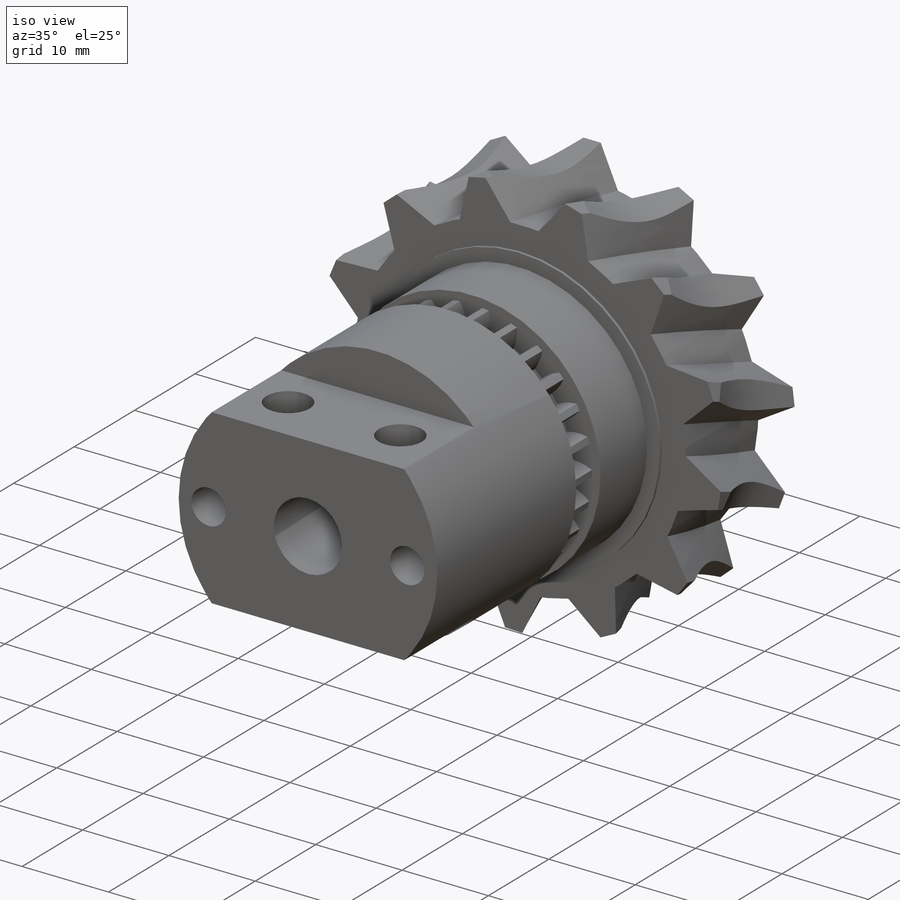
[diagram: iso view]
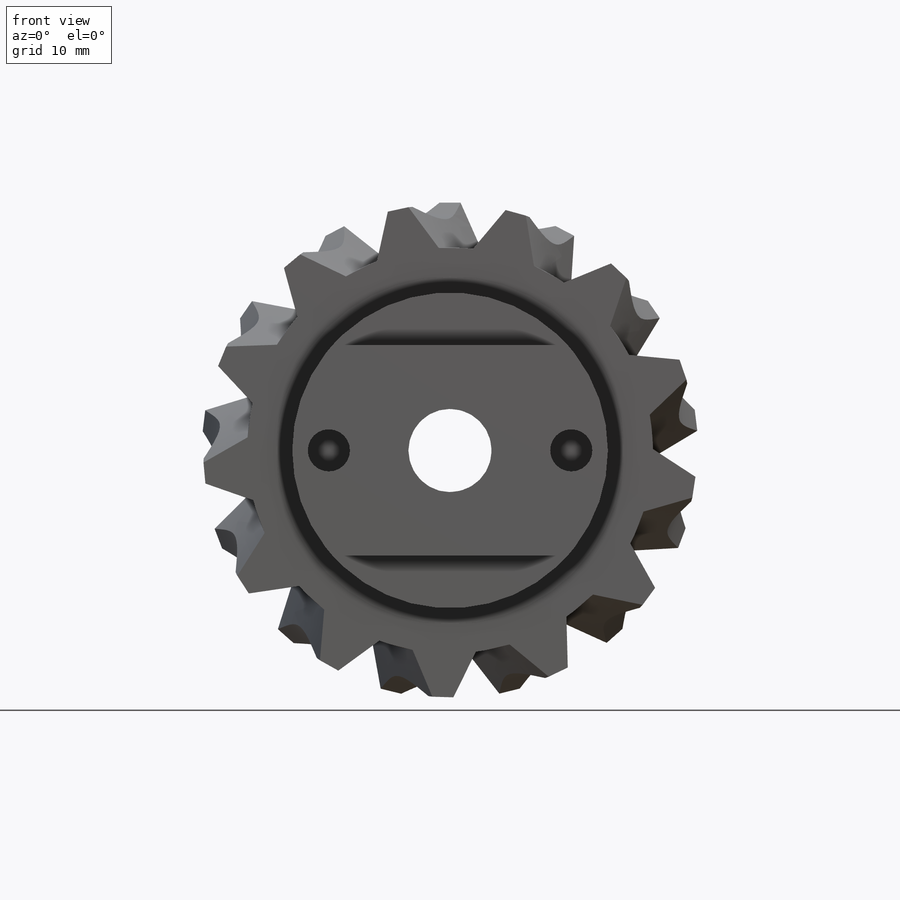
[diagram: front view]
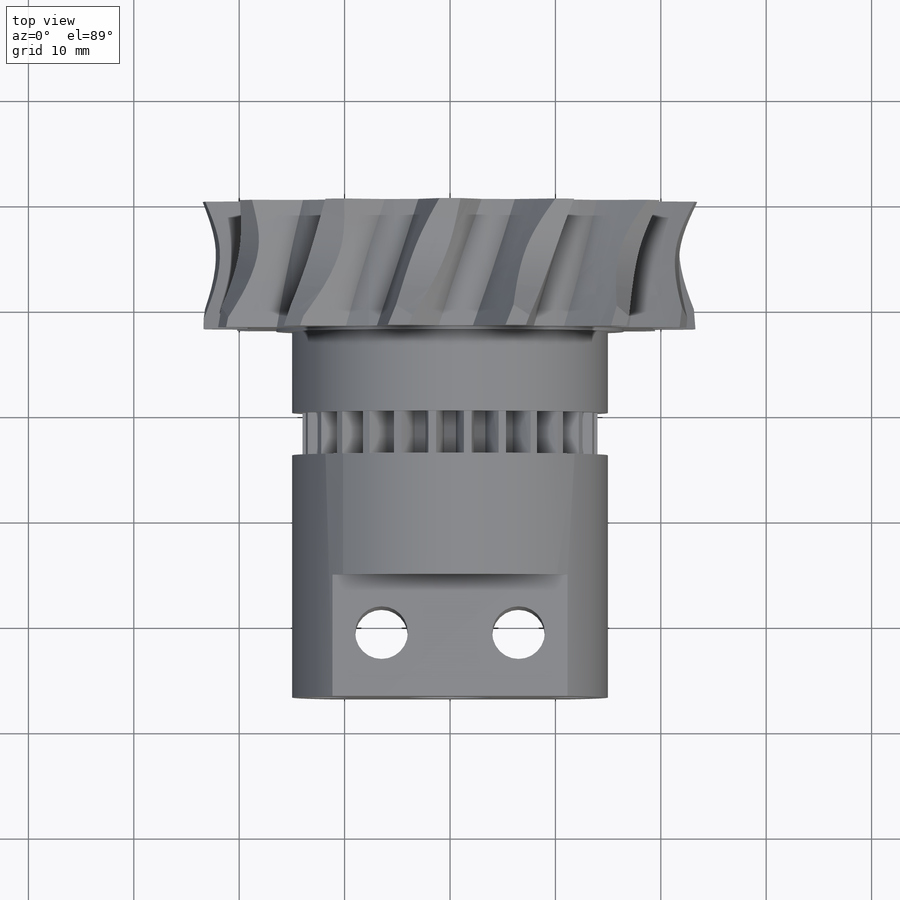
[diagram: top view]
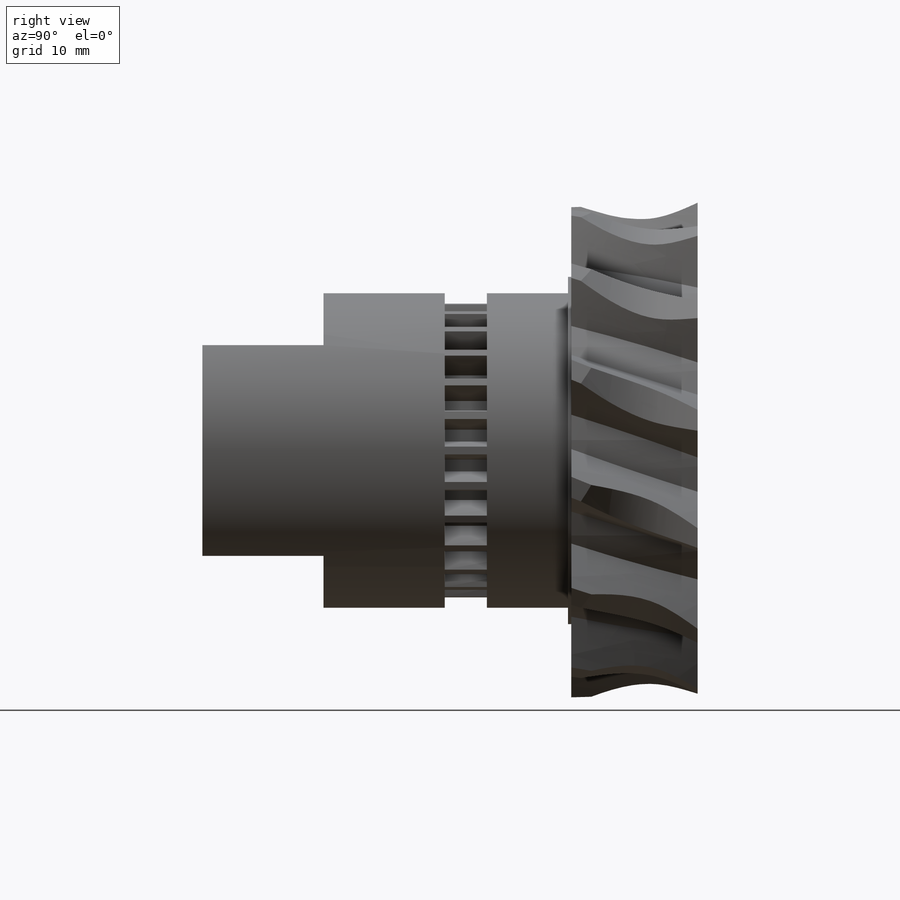
[diagram: right view]
SOLIDWORKS PART (.sldprt)
format: sldprt  version: not decoded by parser v0  size: 856,576 bytes
history: native  units: mm
features: sketch x14, cut_extrude x5, extrude x4, plane x2, pattern_circular x2, hole x2, material x1, mirror x1, move_body x1 + 2 further entries (+18 scaffold rows collapsed; 5 parser-record rows omitted)
feature tree (57):
  scaffold x18  (default folders/planes/origin — collapsed)
  material  "Material <not specified>"
  "Annotations"  RD1=6mm RD2=6mm RD3=13mm RD4=6mm RD5=5mm
  sketch  "Sketch1"  dims[D1=38.5mm]
  extrude  "Extrude1"  Depth=12mm
  sketch  "Sketch2"  dims[D1=29.95mm]
  sketch  "Sketch3"  dims[D1=2.0mm D2=6.0mm D3=4.5mm]
  plane  "Plane1"
  sketch  "Sketch10"  dims[D1=4.0mm]
  sketch  "Sketch8"
  cut_extrude  "Extrude12"  Depth=13mm
  pattern_circular  "CirPattern1"  Count=13 Angle=27.7deg
  extrude  "Extrude7"  Depth=35mm
  sketch  "Sketch11"  dims[D1=10.0mm]
  cut_extrude  "Extrude13"  Depth=11.5mm
  mirror  "Mirror1"
  hole  "Ø5.0 (5) Diameter Hole1"  Diameter=5mm Depth=34.729465mm
  sketch  "3DSketch1"  dims[D1=13.0mm D2=6.0mm]
  sketch  "Sketch12"  dims[hole-wizard template sketch: 60 standard entries collapsed; hole parameters kept: c18.Thru Hole Depth=~34.729465mm]
  hole  "Ø4.0 (4) Diameter Hole1"  Diameter=4mm Depth=15mm
  sketch  "3DSketch2"  dims[c1.D1=23.0mm c1.D2=~3.856554mm c1.D3=3.5mm c2.D3=4.0mm c2.D4=8.5mm c2.D2=~2.773815mm c3.D3=3.5mm]
  sketch  "Sketch13"  dims[hole-wizard template sketch: 50 standard entries collapsed; hole parameters above]
  plane  "Plane2"  Offset=20mm
  sketch  "Sketch14"  dims[c1.D1=1.0mm c1.D2=3.0mm c1.D3=3.0mm c2.D1=4.0mm]
  cut_extrude  "Extrude15"  Depth=4mm
  "Spur Gear_ISO"
  parser-record x5  (decoder bookkeeping rows leaked as tree rows — omitted from the tree; the rows remain in map.json)
  move_body  "Body-Move/Copy2"
  extrude  "<Spur Gear_ISO>-<Bore>"  [1 undecoded]
  sketch  "Sketch17"  dims[D1=3.0mm D2=17.0mm]
  cut_extrude  "Extrude16"  Depth=10mm
  pattern_circular  "CirPattern3"  Count=3 Angle=360deg
  sketch  "Sketch20"  dims[D1=7.9mm]
  cut_extrude  "Extrude18"  [1 undecoded]
  sketch  "Sketch21"  dims[D1=1.5mm]
  extrude  "Extrude20"  Depth=0.3mm
decode coverage: 24 of 29 modeling features carry decoded parameters; 2 rows unclassified (native names shown)
note: ~ marks probable driven/reference dimensions
note: 2 parameter values undecoded
note: suppression state not decoded; provenance and decode notes live in map.json
